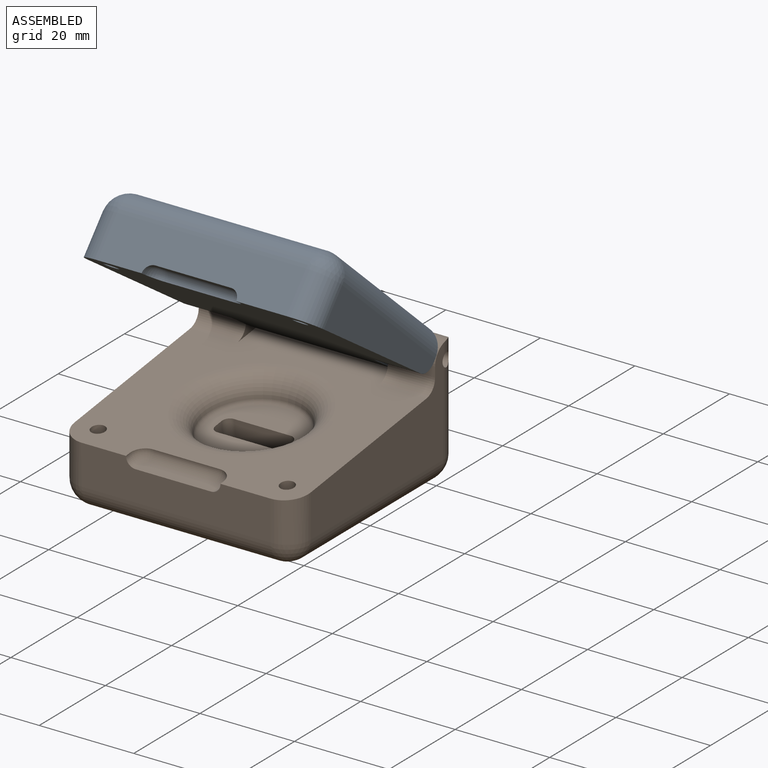
[diagram: assembled view]
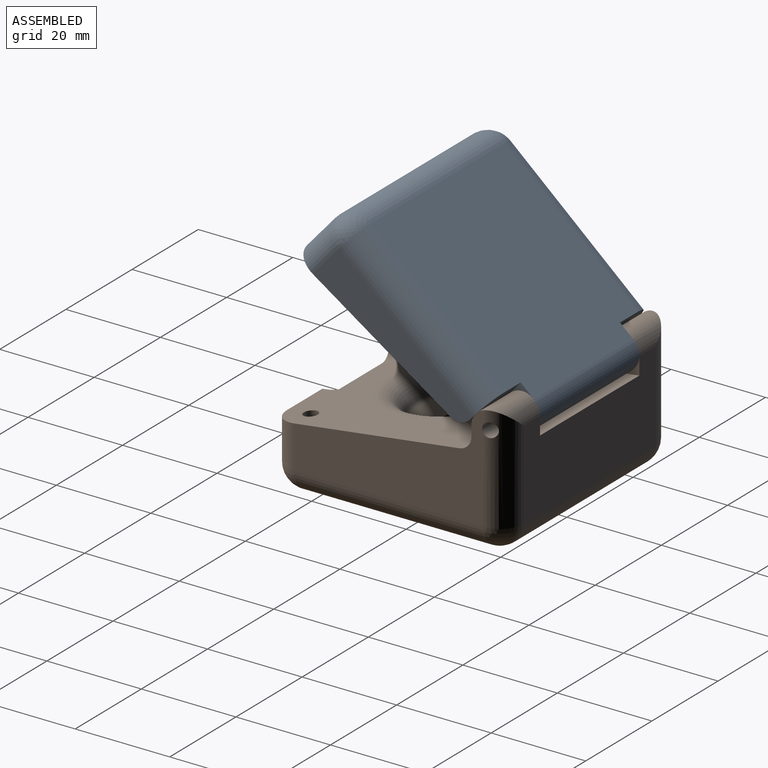
[diagram: assembled view, second angle]
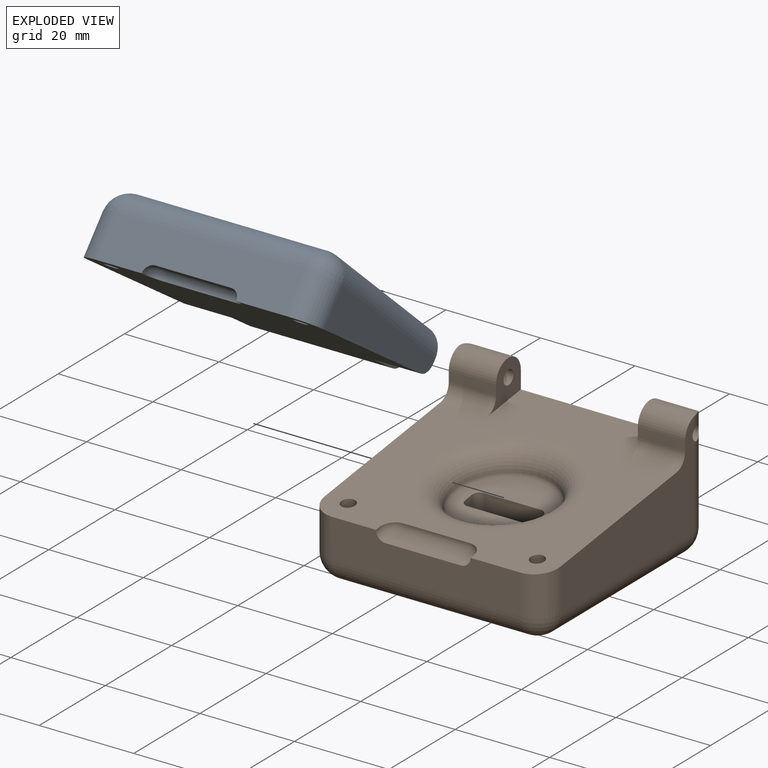
[diagram: exploded view]
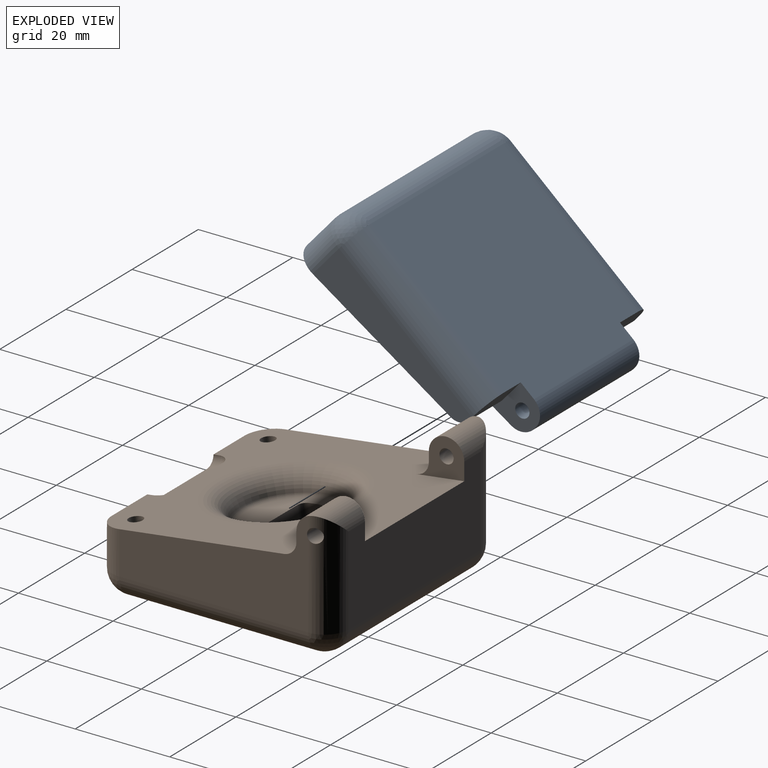
[diagram: exploded view, second angle]
ASSEMBLY  parts=2 mates=2
PART A: 33 faces, bbox 50x50.3x14.1 mm
  f0: plane 30.83x30.57mm, normal (0,0.13,-0.99), area 746.6mm2, adj f19
  f1: cylinder r=3.75mm len=30mm, axis (-1,0,0), area 176.7mm2, adj f2,f3,f14,f16
  f2: plane 41.25x40mm, normal (0,0,1), area 1612.5mm2, adj f1,f5,f6,f7,f8,f9,f14,f16
  f3: plane 30x0.46mm, normal (0,1,0), area 13.8mm2, adj f1,f14,f15,f16
  f4: cylinder r=1.51mm len=30mm, axis (1,0,0), area 285.1mm2, adj f14,f16
  f5: cylinder r=5mm len=40mm, axis (1,0,0), area 314.2mm2, adj f2,f10,f11,f22
  f6: cylinder r=5mm len=37.5mm, axis (0,-1,0), area 294.5mm2, adj f2,f7,f11,f21
  f7: plane 10x5.86mm, normal (0,1,0), area 53.2mm2, adj f2,f6,f13,f14,f21
  f8: plane 10x5.86mm, normal (0,1,0), area 53.2mm2, adj f2,f9,f12,f16,f20
  f9: cylinder r=5mm len=37.5mm, axis (0,-1,0), area 294.5mm2, adj f2,f8,f10,f20
  f10: sphere r=5mm, area 39.3mm2, adj f5,f9,f18
  f11: sphere r=5mm, area 39.3mm2, adj f5,f6,f17
  f12: cylinder r=3mm len=10mm, axis (1,0,0), area 43.2mm2, adj f8,f16,f19,f20
  f13: cylinder r=3mm len=10mm, axis (1,0,0), area 43.2mm2, adj f7,f14,f19,f21
  f14: plane 10.11x8.83mm, normal (1,0,0), area 49mm2, adj f1,f2,f3,f4,f7,f13,f15,f19
  f15: cylinder r=3.75mm len=30mm, axis (-1,0,0), area 162mm2, adj f3,f14,f16,f19
  f16: plane 10.11x8.83mm, normal (-1,0,0), area 49mm2, adj f1,f2,f3,f4,f8,f12,f15,f19
  f17: cylinder r=5mm len=9.08mm, axis (0,0,1), area 69.5mm2, adj f11,f19,f21,f22
  f18: cylinder r=5mm len=9.08mm, axis (0,0,-1), area 69.5mm2, adj f10,f19,f20,f22
  f19: plane 50x46.74mm, normal (0,0.13,-0.99), area 1371.3mm2, adj f0,f12,f13,f14,f15,f16,f17,f18
  f20: plane 37.5x8.42mm, normal (-1,0,0), area 221.9mm2, adj f8,f9,f12,f18,f19
  f21: plane 37.5x8.42mm, normal (1,0,0), area 221.9mm2, adj f6,f7,f13,f17,f19
  f22: plane 40x9.08mm, normal (0,-1,0), area 324.7mm2, adj f5,f17,f18,f19,f27,f28,f30
  f23: cylinder r=1.5mm len=3.24mm, axis (0,0.13,-0.99), area 18.8mm2, adj f19,f24
  f24: plane 3x2.97mm, normal (0,0.13,-0.99), area 7.1mm2, adj f23
  f25: cylinder r=1.5mm len=3.24mm, axis (0,0.13,-0.99), area 18.8mm2, adj f19,f26
  f26: plane 3x2.97mm, normal (0,0.13,-0.99), area 7.1mm2, adj f25
  f27: plane 16x1.72mm, normal (0,0.13,-0.99), area 27.4mm2, adj f22,f28,f29,f30,f31,f32
  f28: cylinder r=2mm len=2.11mm, axis (0,-0.99,-0.13), area 2.6mm2, adj f19,f22,f27,f29
  f29: torus R=1mm, axis (0,0.13,-0.99), area 11.2mm2, adj f19,f27,f28,f31
  f30: cylinder r=2mm len=2.11mm, axis (0,0.99,0.13), area 2.6mm2, adj f19,f22,f27,f32
  f31: cylinder r=2mm len=14mm, axis (1,0,0), area 44mm2, adj f19,f27,f29,f32
  f32: torus R=1mm, axis (0,0.13,-0.99), area 11.2mm2, adj f19,f27,f30,f31
PART B: 50 faces, bbox 50.1x50.4x27.6 mm
  f0: plane 50x50mm, normal (0,-0.13,0.99), area 1469.9mm2, adj f2,f3,f4,f5,f8,f11,f15,f20
  f1: plane 19x18.84mm, normal (0,-0.13,0.99), area 210.5mm2, adj f29,f30,f31,f32,f33,f35,f36,f37
  f2: plane 40.11x8.53mm, normal (0,-1,0), area 298.1mm2, adj f0,f15,f19,f20,f44,f45,f49
  f3: plane 40x22.29mm, normal (1,0,0), area 487.4mm2, adj f0,f12,f13,f14,f20,f24,f26,f27
  f4: plane 40x18.75mm, normal (0,1,0), area 637.5mm2, adj f0,f8,f9,f11,f13,f17,f23,f26
  f5: plane 40x22.29mm, normal (-1,0,0), area 487.4mm2, adj f0,f7,f9,f10,f15,f17,f18,f28
  f6: plane 40x40mm, normal (0,0,-1), area 1600mm2, adj f18,f19,f23,f24
  f7: plane 10x2.11mm, normal (0,-1,0), area 21.1mm2, adj f5,f8,f9,f28
  f8: plane 10.11x8.83mm, normal (1,0,0), area 48.3mm2, adj f0,f4,f7,f9,f10,f28
  f9: cylinder r=3.75mm len=10mm, axis (-1,0,0), area 105.3mm2, adj f4,f5,f7,f8,f17
  f10: cylinder r=1.5mm len=10mm, axis (-1,0,0), area 91.6mm2, adj f5,f8,f17
  f11: plane 10.11x8.83mm, normal (-1,0,0), area 48.3mm2, adj f0,f4,f12,f13,f14,f27
  f12: plane 10x2.11mm, normal (0,-1,0), area 21.1mm2, adj f3,f11,f13,f27
  f13: cylinder r=3.75mm len=10mm, axis (1,0,0), area 105.3mm2, adj f3,f4,f11,f12,f26
  f14: cylinder r=1.5mm len=10mm, axis (1,0,0), area 91.5mm2, adj f3,f11,f26
  f15: cylinder r=5mm len=9.08mm, axis (0,0,1), area 68mm2, adj f0,f2,f5,f16
  f16: sphere r=5mm, area 39.3mm2, adj f15,f18,f19
  f17: cylinder r=5mm len=22.5mm, axis (0,0,-1), area 160.3mm2, adj f4,f5,f9,f10,f21
  f18: cylinder r=5mm len=40mm, axis (0,-1,0), area 314.2mm2, adj f5,f6,f16,f21
  f19: cylinder r=5mm len=40mm, axis (1,0,0), area 314.2mm2, adj f2,f6,f16,f22
  f20: cylinder r=5mm len=9.08mm, axis (0,0,-1), area 68mm2, adj f0,f2,f3,f22
  f21: sphere r=5mm, area 39.3mm2, adj f17,f18,f23
  f22: sphere r=5mm, area 39.3mm2, adj f19,f20,f24
  f23: cylinder r=5mm len=40mm, axis (-1,0,0), area 314.2mm2, adj f4,f6,f21,f25
  f24: cylinder r=5mm len=40mm, axis (0,1,0), area 314.2mm2, adj f3,f6,f22,f25
  f25: sphere r=5mm, area 39.3mm2, adj f23,f24,f26
  f26: cylinder r=5mm len=22.5mm, axis (0,0,1), area 160.3mm2, adj f3,f4,f13,f14,f25
  f27: cylinder r=3mm len=10mm, axis (1,0,0), area 43.2mm2, adj f0,f3,f11,f12
  f28: cylinder r=3mm len=10mm, axis (1,0,0), area 43.2mm2, adj f0,f5,f7,f8
  f29: torus R=9.5mm, axis (0,-0.13,0.99), area 89mm2, adj f1,f39
  f30: plane 12x6.94mm, normal (0,0.99,0.13), area 84mm2, adj f1,f34,f35,f38
  f31: plane 7.2x2.9mm, normal (-1,0,0), area 14mm2, adj f1,f34,f35,f36
  f32: plane 12x6.94mm, normal (0,-0.99,-0.13), area 84mm2, adj f1,f34,f36,f37
  f33: plane 7.2x2.9mm, normal (1,0,0), area 14mm2, adj f1,f34,f37,f38
  f34: plane 15x4.96mm, normal (0,-0.13,0.99), area 73.1mm2, adj f30,f31,f32,f33,f35,f36,f37,f38
  f35: cylinder r=1.5mm len=7.14mm, axis (0,0.13,-0.99), area 16.5mm2, adj f1,f30,f31,f34
  f36: cylinder r=1.5mm len=7.14mm, axis (0,-0.13,0.99), area 16.5mm2, adj f1,f31,f32,f34
  f37: cylinder r=1.5mm len=7.14mm, axis (0,0.13,-0.99), area 16.5mm2, adj f1,f32,f33,f34
  f38: cylinder r=1.5mm len=7.14mm, axis (0,-0.13,0.99), area 16.5mm2, adj f1,f30,f33,f34
  f39: torus R=15.42mm, axis (0,0.13,-0.99), area 548.8mm2, adj f0,f29
  f40: cylinder r=1.5mm len=3.24mm, axis (0,-0.13,0.99), area 18.8mm2, adj f0,f41
  f41: plane 3x2.97mm, normal (0,-0.13,0.99), area 7.1mm2, adj f40
  f42: cylinder r=1.5mm len=3.24mm, axis (0,-0.13,0.99), area 18.8mm2, adj f0,f43
  f43: plane 3x2.97mm, normal (0,-0.13,0.99), area 7.1mm2, adj f42
  f44: plane 16x2.24mm, normal (0,-0.13,0.99), area 35.8mm2, adj f2,f45,f46,f47,f48,f49
  f45: cylinder r=2mm len=2.15mm, axis (0,-0.99,-0.13), area 3.6mm2, adj f0,f2,f44,f46
  f46: torus R=1mm, axis (0,0.13,-0.99), area 11.2mm2, adj f0,f44,f45,f47
  f47: cylinder r=2mm len=14mm, axis (1,0,0), area 44mm2, adj f0,f44,f46,f48
  f48: torus R=1mm, axis (0,0.13,-0.99), area 11.2mm2, adj f0,f44,f47,f49
  f49: cylinder r=2mm len=2.15mm, axis (0,0.99,0.13), area 3.6mm2, adj f0,f2,f44,f48
PLACE A rot(axis=(-1,0,0),41.3deg) t=(-82.29,27.85,67.82)mm
PLACE B t=(-82.29,38.24,47.86)mm fixed
MATE cylindrical A.f4 <-> B.f9  axis (1,0,0) through (-97.29,59.49,71.61)mm
MATE planar A.f20 <-> B.f5  axis (-1,0,0) through (-107.29,37.64,84.97)mm
